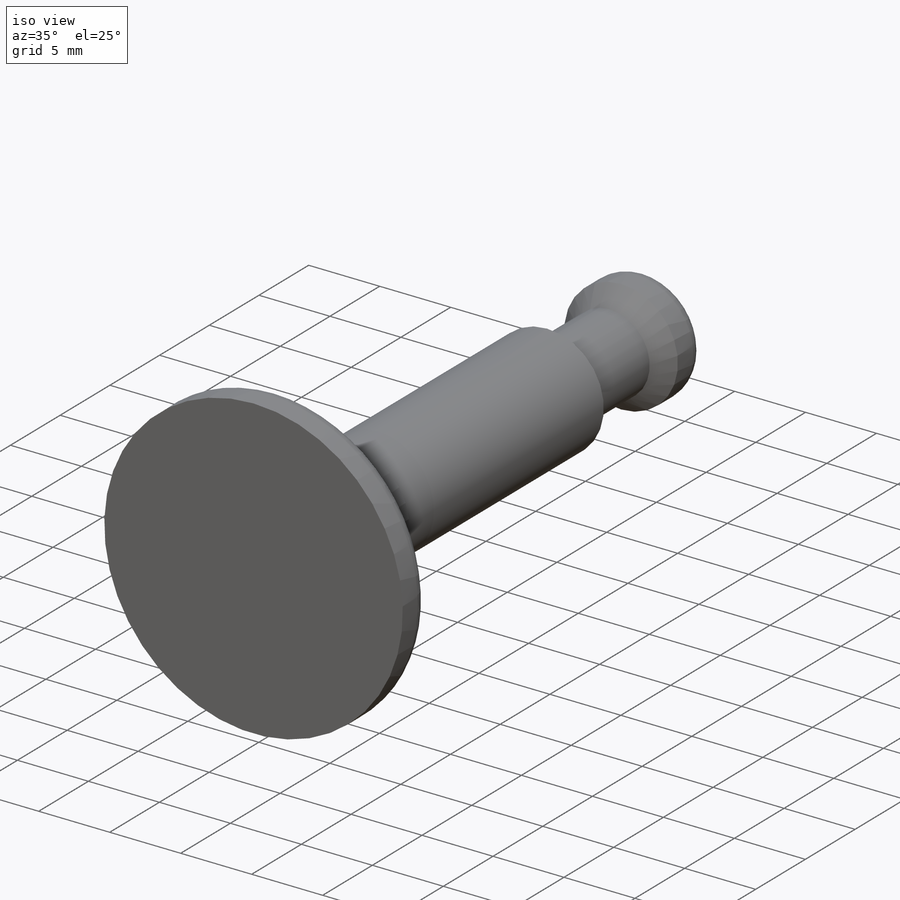
[diagram: iso view]
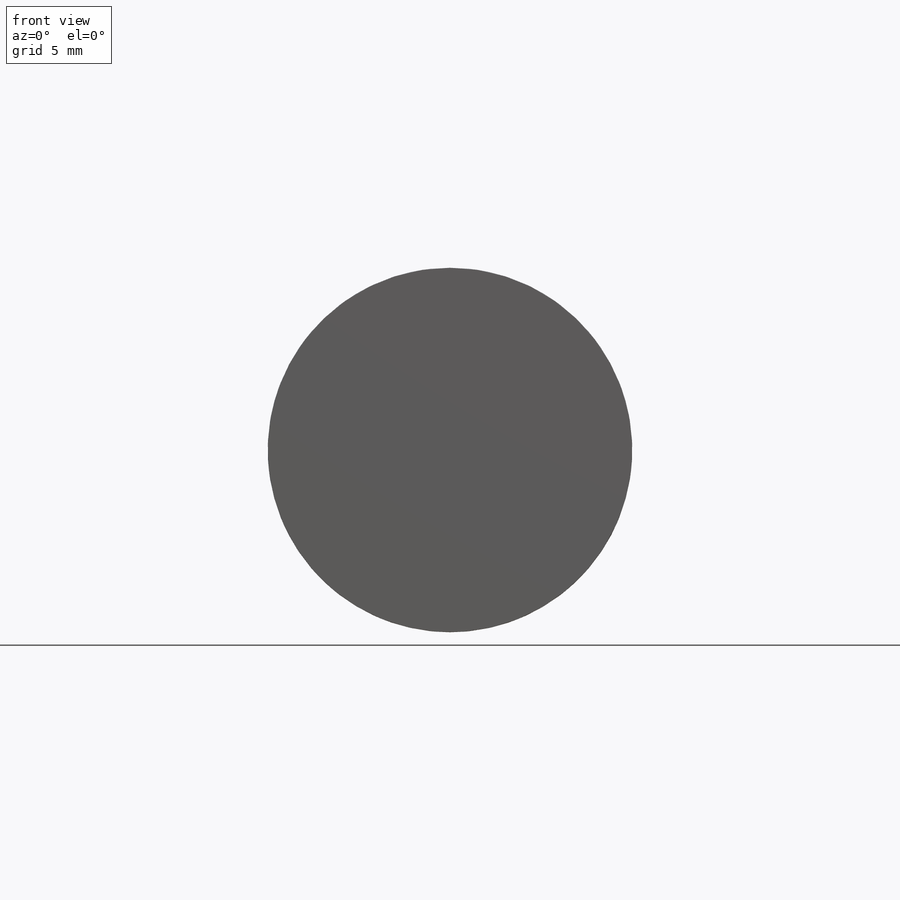
[diagram: front view]
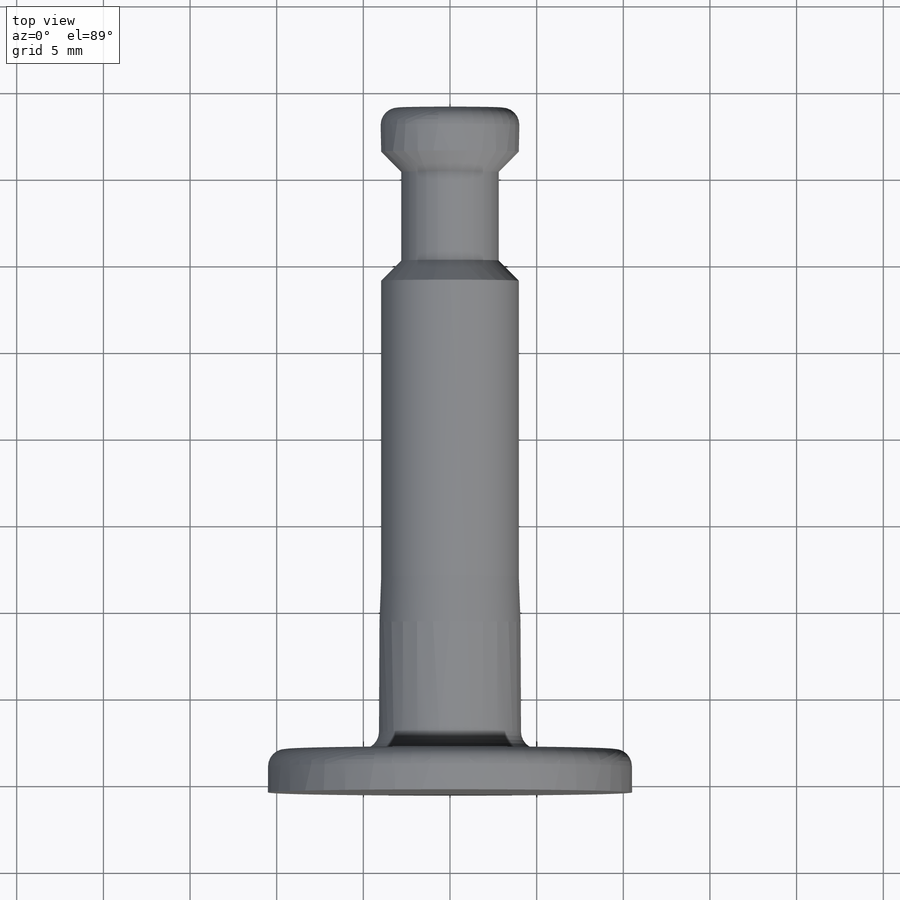
[diagram: top view]
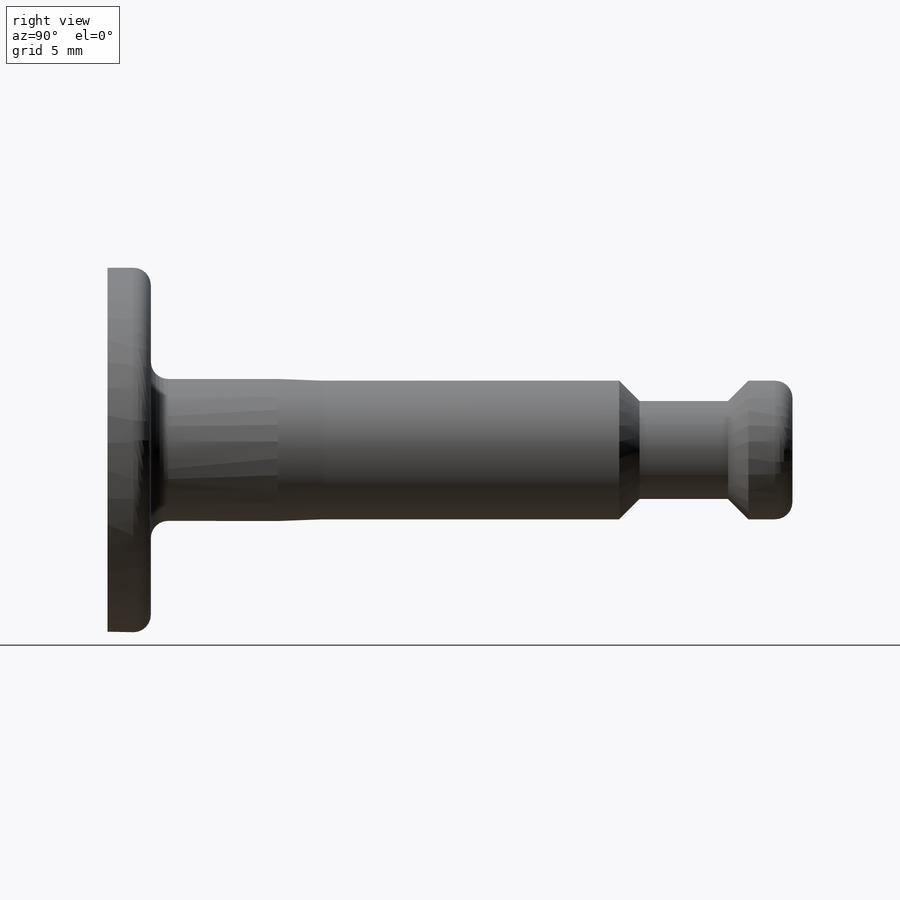
[diagram: right view]
SOLIDWORKS PART (.sldprt)
format: sldprt  version: not decoded by parser v0  size: 288,256 bytes
history: native  units: mm
features: sketch x7, fillet x4, cut_extrude x3, revolve x2, extrude x2, material x1 (+13 scaffold rows collapsed)
feature tree (32):
  scaffold x13  (default folders/planes/origin — collapsed)
  material  "Material <not specified>"
  sketch  "Sketch2"  dims[c1.D5=50.0mm c1.D7=5.0mm c1.D6=5.0mm c1.D9=1.0mm c1.D10=1.0mm c1.D13=1.0mm c1.D1=34.0mm c1.D2=4.0mm c1.D3=10.0mm c1.D4=7.0mm c2.D5=3.0mm c3.D5=60.0deg c3.D6=~5.744994mm c4.D6=60.0deg c4.D7=3.0mm c4.D1=4.0mm c4.D2=34.0mm c4.D3=~3.713688mm c4.D4=~2.528195mm c4.D5=10.0mm c5.D6=~4.143641mm c6.D6=45.0deg c6.D7=~3.758117mm c7.D7=45.0deg c7.D4=6.75mm c7.D8=7.0mm c7.D9=1.25mm c7.D10=10.0mm c7.D2=34.0mm c7.D11=4.0mm c7.D12=~8.830246mm c7.D13=2.75mm c7.D14=2.75mm c7.D15=~4.242641mm c7.D16=~11.393824mm c7.D17=24.0mm c7.D18=~2.543933mm c7.D19=~1.860208mm c8.D2=~10.514854mm c8.D4=2.5mm c8.D8=7.0mm c8.D13=3.0mm c8.D14=2.0mm c8.D15=1.25mm c8.D16=0.8mm c8.D19=1.0mm c9.D19=~51.340192deg c9.D13=1.0mm c10.D13=45.0deg c10.D14=~1.131923mm c11.D14=45.0deg c11.D15=4.0mm c11.D8=4.1mm c11.D9=4.0mm c11.D13=~2.830246mm c12.D14=~0.453951mm]
  revolve  "Revolve1"  Angle=360deg
  sketch  "Sketch3"  dims[D1=0.0mm]
  extrude  "Boss-Extrude1"  Depth=8mm
  sketch  "Sketch4"  dims[D1=0.5mm]
  extrude  "Boss-Extrude2"  Depth=1mm
  fillet  "Fillet1"  Radius=10mm
  fillet  "Fillet2"  Radius=0.5mm
  sketch  "Sketch5"  dims[D1=4.0mm D2=2.0mm]
  cut_extrude  "Cut-Extrude1"  Depth=8mm
  fillet  "Fillet3"  Radius=2mm
  sketch  "Sketch6"  dims[D1=7.25mm D2=4.0mm]
  revolve  "Revolve2"  Angle=360deg
  sketch  "Sketch7"
  cut_extrude  "Cut-Extrude2"  Depth=8mm
  sketch  "Sketch8"
  cut_extrude  "Cut-Extrude3"  [1 undecoded]
  fillet  "Fillet4"  Radius=0.5mm
decode coverage: 15 of 18 modeling features carry decoded parameters
note: ~ marks probable driven/reference dimensions
note: 1 parameter value undecoded
note: suppression state not decoded; provenance and decode notes live in map.json
